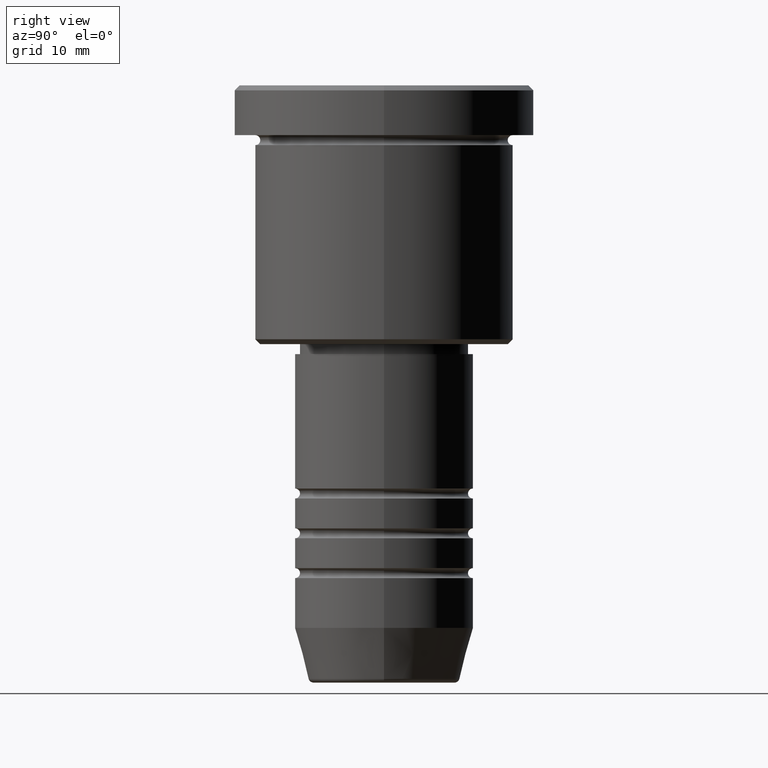
[diagram: clean part render]
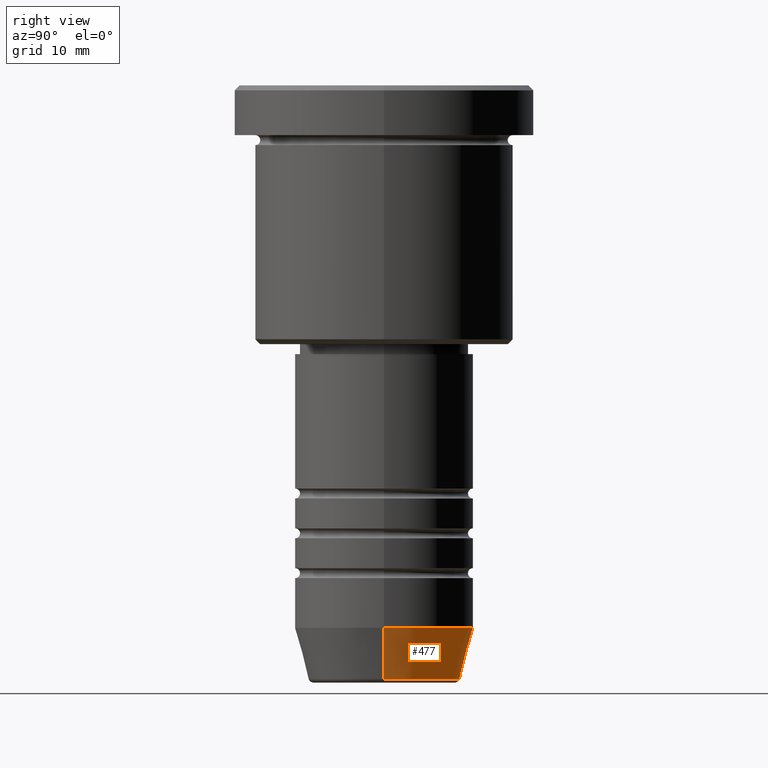
[diagram: same view with one face highlighted and labeled with its STEP entity id]
A machine part, right view. The second image highlights one B-rep face of the part: STEP entity #477.
In plain terms, the highlighted conical surface has half-angle 15 deg.
Its self-contained STEP definition (entity closure, byte-faithful):
#15 = AXIS2_PLACEMENT_3D ( 'NONE', #993, #81, #799 ) ;
#37 = CIRCLE ( 'NONE', #420, 9.000000000000001776 ) ;
#81 = DIRECTION ( 'NONE',  ( -0.000000000000000000, -0.000000000000000000, 1.000000000000000000 ) ) ;
#117 = ORIENTED_EDGE ( 'NONE', *, *, #350, .T. ) ;
#135 = FACE_OUTER_BOUND ( 'NONE', #571, .T. ) ;
#151 = ORIENTED_EDGE ( 'NONE', *, *, #576, .T. ) ;
#160 = CONICAL_SURFACE ( 'NONE', #15, 9.000000000000001776, 0.2617993877991499074 ) ;
#185 = LINE ( 'NONE', #443, #991 ) ;
#205 = DIRECTION ( 'NONE',  ( -0.000000000000000000, -0.000000000000000000, 1.000000000000000000 ) ) ;
#228 = CARTESIAN_POINT ( 'NONE',  ( 9.000000000000001776, 0.000000000000000000, -54.50000000000000000 ) ) ;
#291 = CARTESIAN_POINT ( 'NONE',  ( 0.000000000000000000, 0.000000000000000000, -54.50000000000000000 ) ) ;
#298 = AXIS2_PLACEMENT_3D ( 'NONE', #693, #700, #358 ) ;
#329 = EDGE_CURVE ( 'NONE', #423, #408, #37, .T. ) ;
#350 = EDGE_CURVE ( 'NONE', #499, #408, #1022, .T. ) ;
#358 = DIRECTION ( 'NONE',  ( 1.000000000000000000, 0.000000000000000000, 0.000000000000000000 ) ) ;
#408 = VERTEX_POINT ( 'NONE', #1149 ) ;
#420 = AXIS2_PLACEMENT_3D ( 'NONE', #291, #205, #572 ) ;
#423 = VERTEX_POINT ( 'NONE', #228 ) ;
#443 = CARTESIAN_POINT ( 'NONE',  ( 9.000000000000001776, 0.000000000000000000, -54.50000000000000000 ) ) ;
#477 = ADVANCED_FACE ( 'NONE', ( #135 ), #160, .T. ) ;
#499 = VERTEX_POINT ( 'NONE', #750 ) ;
#571 = EDGE_LOOP ( 'NONE', ( #151, #117, #778, #782 ) ) ;
#572 = DIRECTION ( 'NONE',  ( 1.000000000000000000, 0.000000000000000000, 0.000000000000000000 ) ) ;
#576 = EDGE_CURVE ( 'NONE', #587, #499, #806, .T. ) ;
#587 = VERTEX_POINT ( 'NONE', #1132 ) ;
#693 = CARTESIAN_POINT ( 'NONE',  ( 0.000000000000000000, 0.000000000000000000, -59.62940952255126348 ) ) ;
#700 = DIRECTION ( 'NONE',  ( -0.000000000000000000, -0.000000000000000000, 1.000000000000000000 ) ) ;
#725 = EDGE_CURVE ( 'NONE', #587, #423, #185, .T. ) ;
#750 = CARTESIAN_POINT ( 'NONE',  ( -7.625578860783880586, 1.018023096791544096E-15, -59.62940952255126348 ) ) ;
#778 = ORIENTED_EDGE ( 'NONE', *, *, #329, .F. ) ;
#782 = ORIENTED_EDGE ( 'NONE', *, *, #725, .F. ) ;
#799 = DIRECTION ( 'NONE',  ( 1.000000000000000000, 0.000000000000000000, 0.000000000000000000 ) ) ;
#806 = CIRCLE ( 'NONE', #298, 7.625578860783880586 ) ;
#829 = VECTOR ( 'NONE', #868, 1000.000000000000114 ) ;
#868 = DIRECTION ( 'NONE',  ( -0.2588190451025211836, 3.169619151431770488E-17, 0.9659258262890680902 ) ) ;
#991 = VECTOR ( 'NONE', #1066, 1000.000000000000114 ) ;
#993 = CARTESIAN_POINT ( 'NONE',  ( 0.000000000000000000, 0.000000000000000000, -54.50000000000000000 ) ) ;
#1022 = LINE ( 'NONE', #1137, #829 ) ;
#1066 = DIRECTION ( 'NONE',  ( 0.2588190451025211836, 0.000000000000000000, 0.9659258262890680902 ) ) ;
#1132 = CARTESIAN_POINT ( 'NONE',  ( 7.625578860783880586, 0.000000000000000000, -59.62940952255126348 ) ) ;
#1137 = CARTESIAN_POINT ( 'NONE',  ( -9.000000000000001776, 1.102182119232617911E-15, -54.50000000000000000 ) ) ;
#1149 = CARTESIAN_POINT ( 'NONE',  ( -9.000000000000001776, 1.102182119232617911E-15, -54.50000000000000000 ) ) ;